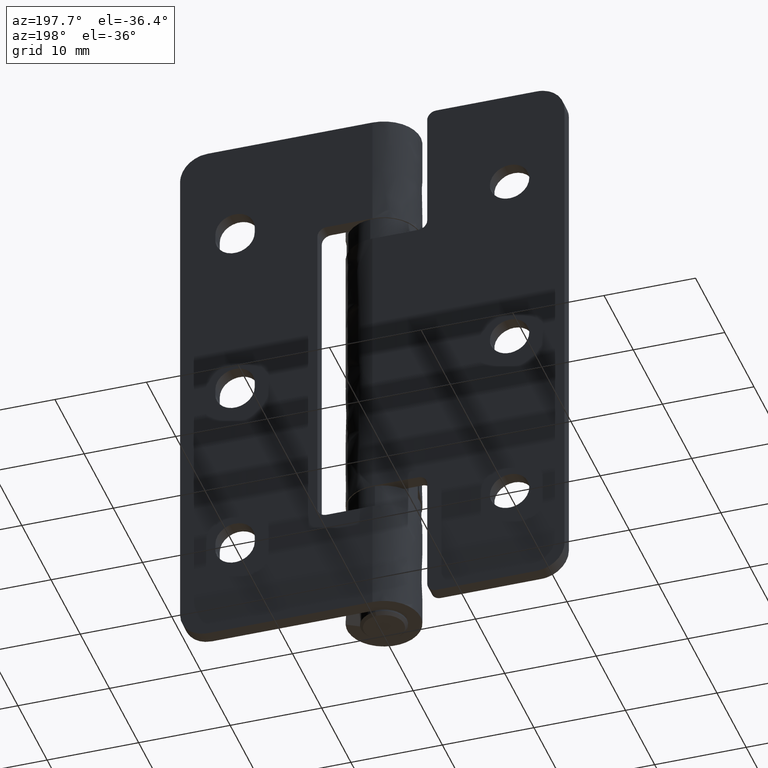
[diagram: clean part render]
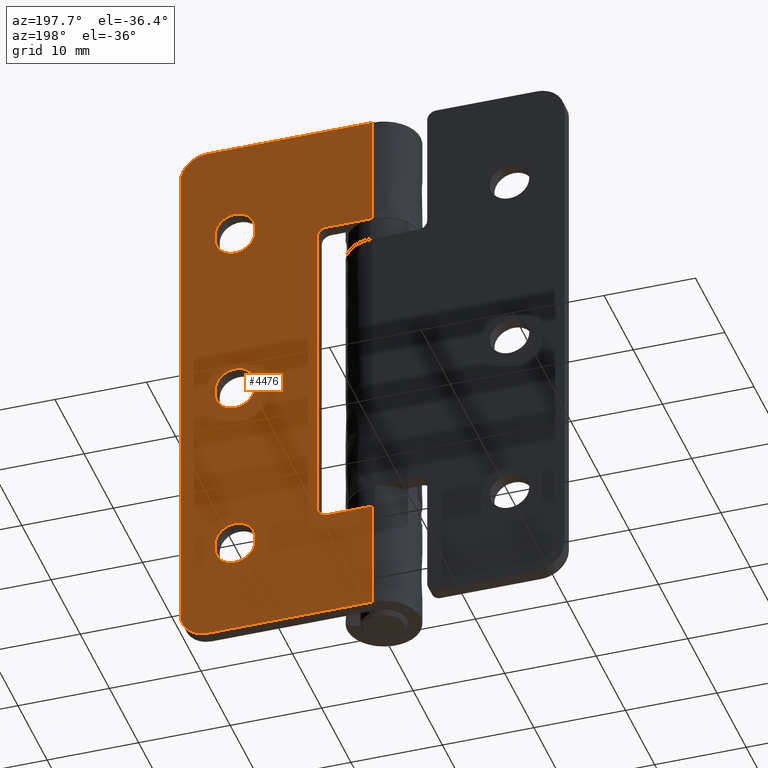
[diagram: same view with one face highlighted and labeled with its STEP entity id]
A machine part, auxiliary view. The second image highlights one B-rep face of the part: STEP entity #4476.
In plain terms, the highlighted face is a freeform B-spline surface patch.
Its self-contained STEP definition (entity closure, byte-faithful):
#2877=CARTESIAN_POINT('',(21.000000000000249,4.000000000000740,59.0));
#2878=VERTEX_POINT('',#2877);
#2879=CARTESIAN_POINT('',(21.000000000000249,4.000000000000740,3.0));
#2880=VERTEX_POINT('',#2879);
#2881=CARTESIAN_POINT('',(21.000000000000249,4.000000000000740,59.0));
#2882=CARTESIAN_POINT('',(21.000000000000249,4.000000000000740,3.0));
#2883=QUASI_UNIFORM_CURVE('',1,(#2881,#2882),.UNSPECIFIED.,.F.,.U.);
#2884=EDGE_CURVE('',#2878,#2880,#2883,.T.);
#3145=CARTESIAN_POINT('',(18.0,4.000000000000686,0.0));
#3146=VERTEX_POINT('',#3145);
#3152=CARTESIAN_POINT('',(21.000000000000249,4.000000000000740,3.0));
#3153=CARTESIAN_POINT('',(21.000000000000004,4.000000000000685,0.0));
#3154=CARTESIAN_POINT('',(18.0,4.000000000000686,0.0));
#3162=(BOUNDED_CURVE()B_SPLINE_CURVE(2,(#3152,#3153,#3154),.UNSPECIFIED.,.F.,.U.)CURVE()GEOMETRIC_REPRESENTATION_ITEM()QUASI_UNIFORM_CURVE()RATIONAL_B_SPLINE_CURVE((1.0,0.707106781186548,1.0))REPRESENTATION_ITEM(''));
#3163=EDGE_CURVE('',#2880,#3146,#3162,.T.);
#3199=CARTESIAN_POINT('',(18.0,4.000000000000686,62.0));
#3200=VERTEX_POINT('',#3199);
#3201=CARTESIAN_POINT('',(18.0,4.000000000000686,62.0));
#3202=CARTESIAN_POINT('',(21.000000000000004,4.000000000000685,62.000000000000007));
#3203=CARTESIAN_POINT('',(21.0,4.000000000000686,59.0));
#3211=(BOUNDED_CURVE()B_SPLINE_CURVE(2,(#3201,#3202,#3203),.UNSPECIFIED.,.F.,.U.)CURVE()GEOMETRIC_REPRESENTATION_ITEM()QUASI_UNIFORM_CURVE()RATIONAL_B_SPLINE_CURVE((1.0,0.707106781186548,1.0))REPRESENTATION_ITEM(''));
#3212=EDGE_CURVE('',#3200,#2878,#3211,.T.);
#3253=CARTESIAN_POINT('',(5.000000000000230,4.0,49.600000000000001));
#3254=VERTEX_POINT('',#3253);
#3260=CARTESIAN_POINT('',(6.000000000000230,4.0,48.599999999999987));
#3261=VERTEX_POINT('',#3260);
#3262=CARTESIAN_POINT('',(6.000000000000230,4.0,48.599999999999987));
#3263=CARTESIAN_POINT('',(6.000000000000230,4.000000000000451,49.600000000000001));
#3264=CARTESIAN_POINT('',(5.000000000000230,4.000000000000450,49.600000000000001));
#3272=(BOUNDED_CURVE()B_SPLINE_CURVE(2,(#3262,#3263,#3264),.UNSPECIFIED.,.F.,.U.)CURVE()GEOMETRIC_REPRESENTATION_ITEM()QUASI_UNIFORM_CURVE()RATIONAL_B_SPLINE_CURVE((1.0,0.707106781186548,1.0))REPRESENTATION_ITEM(''));
#3273=EDGE_CURVE('',#3261,#3254,#3272,.T.);
#3314=CARTESIAN_POINT('',(6.0,4.0,13.400000000000000));
#3315=VERTEX_POINT('',#3314);
#3321=CARTESIAN_POINT('',(5.0,4.0,12.400000000000000));
#3322=VERTEX_POINT('',#3321);
#3323=CARTESIAN_POINT('',(5.0,4.0,12.400000000000000));
#3324=CARTESIAN_POINT('',(6.0,4.000000000000451,12.400000000000002));
#3325=CARTESIAN_POINT('',(6.0,4.000000000000450,13.400000000000000));
#3333=(BOUNDED_CURVE()B_SPLINE_CURVE(2,(#3323,#3324,#3325),.UNSPECIFIED.,.F.,.U.)CURVE()GEOMETRIC_REPRESENTATION_ITEM()QUASI_UNIFORM_CURVE()RATIONAL_B_SPLINE_CURVE((1.0,0.707106781186548,1.0))REPRESENTATION_ITEM(''));
#3334=EDGE_CURVE('',#3322,#3315,#3333,.T.);
#3349=CARTESIAN_POINT('',(1.136244E-013,4.0,12.400000000000000));
#3350=VERTEX_POINT('',#3349);
#3421=CARTESIAN_POINT('',(5.0,4.0,12.400000000000000));
#3422=CARTESIAN_POINT('',(1.136244E-013,4.0,12.400000000000000));
#3423=QUASI_UNIFORM_CURVE('',1,(#3421,#3422),.UNSPECIFIED.,.F.,.U.);
#3424=EDGE_CURVE('',#3322,#3350,#3423,.T.);
#3434=CARTESIAN_POINT('',(6.000000000000230,4.0,48.599999999999987));
#3435=CARTESIAN_POINT('',(6.0,4.0,13.400000000000000));
#3436=QUASI_UNIFORM_CURVE('',1,(#3434,#3435),.UNSPECIFIED.,.F.,.U.);
#3437=EDGE_CURVE('',#3261,#3315,#3436,.T.);
#3486=CARTESIAN_POINT('',(1.136244E-013,4.0,49.600000000000001));
#3487=VERTEX_POINT('',#3486);
#3521=CARTESIAN_POINT('',(1.136244E-013,4.0,49.600000000000001));
#3522=CARTESIAN_POINT('',(5.000000000000230,4.0,49.600000000000001));
#3523=QUASI_UNIFORM_CURVE('',1,(#3521,#3522),.UNSPECIFIED.,.F.,.U.);
#3524=EDGE_CURVE('',#3487,#3254,#3523,.T.);
#3553=CARTESIAN_POINT('',(12.850000000000220,4.000000000000740,50.649999999999999));
#3554=VERTEX_POINT('',#3553);
#3555=CARTESIAN_POINT('',(17.150000000000251,4.000000000000711,50.649999999999999));
#3556=VERTEX_POINT('',#3555);
#3557=CARTESIAN_POINT('',(12.850000000000220,4.000000000000740,50.649999999999999));
#3558=CARTESIAN_POINT('',(12.849949483375140,4.000000000000746,50.456515946203012));
#3559=CARTESIAN_POINT('',(12.904937891584680,4.000000000000738,50.051968708920647));
#3560=CARTESIAN_POINT('',(13.142689635596261,4.000000000000727,49.515523118448179));
#3561=CARTESIAN_POINT('',(13.491297459781419,4.000000000000750,49.090856070506881));
#3562=CARTESIAN_POINT('',(13.864538752415010,4.000000000000735,48.806894730438337));
#3563=CARTESIAN_POINT('',(14.238714454196611,4.000000000000743,48.627129911147932));
#3564=CARTESIAN_POINT('',(14.621535094519800,4.000000000000737,48.521182976742047));
#3565=CARTESIAN_POINT('',(15.000117129785490,4.000000000000719,48.488590470114197));
#3566=CARTESIAN_POINT('',(15.439399360565551,4.000000000000752,48.529085340179257));
#3567=CARTESIAN_POINT('',(15.871388360378591,4.000000000000737,48.663020993919432));
#3568=CARTESIAN_POINT('',(16.259617493765731,4.000000000000746,48.892539473436962));
#3569=CARTESIAN_POINT('',(16.585254305548780,4.000000000000698,49.176921221867147));
#3570=CARTESIAN_POINT('',(16.839279092772681,4.000000000000783,49.506571316471778));
#3571=CARTESIAN_POINT('',(17.080297092800780,4.000000000000840,50.008118375309579));
#3572=CARTESIAN_POINT('',(17.150202102459051,4.000000000000608,50.394919561375183));
#3573=CARTESIAN_POINT('',(17.150000000000251,4.000000000000711,50.649999999999999));
#3574=B_SPLINE_CURVE_WITH_KNOTS('',3,(#3557,#3558,#3559,#3560,#3561,#3562,#3563,#3564,#3565,#3566,#3567,#3568,#3569,#3570,#3571,#3572,#3573),.UNSPECIFIED.,.F.,.U.,(4,1,1,1,1,1,1,1,1,1,1,1,1,1,4),(0.000000256191891,0.580449485174453,1.213690184713316,1.741388629170988,2.216328478641885,2.612095563858018,2.981479940108516,3.403577252444793,3.746583584079580,4.300687839606021,4.749227474744182,5.092236488777210,5.593561053522185,5.989330165365465,6.754466586436591),.UNSPECIFIED.);
#3575=EDGE_CURVE('',#3554,#3556,#3574,.T.);
#3618=CARTESIAN_POINT('',(17.150000000000251,4.000000000000740,51.350000000000001));
#3619=VERTEX_POINT('',#3618);
#3620=CARTESIAN_POINT('',(17.150000000000251,4.000000000000740,51.350000000000001));
#3621=CARTESIAN_POINT('',(17.150000000000251,4.000000000000711,50.649999999999999));
#3622=QUASI_UNIFORM_CURVE('',1,(#3620,#3621),.UNSPECIFIED.,.F.,.U.);
#3623=EDGE_CURVE('',#3619,#3556,#3622,.T.);
#3659=CARTESIAN_POINT('',(12.850000000000220,4.000000000000740,51.350000000000001));
#3660=VERTEX_POINT('',#3659);
#3661=CARTESIAN_POINT('',(17.150000000000251,4.000000000000740,51.350000000000001));
#3662=CARTESIAN_POINT('',(17.150230990420638,4.000000000000740,51.613876000975907));
#3663=CARTESIAN_POINT('',(17.074562391639930,4.000000000000751,52.018252340917513));
#3664=CARTESIAN_POINT('',(16.832113035476951,4.000000000000718,52.499755823520488));
#3665=CARTESIAN_POINT('',(16.567962388953919,4.000000000000776,52.842580583312063));
#3666=CARTESIAN_POINT('',(16.273150377586241,4.000000000000730,53.096882459916444));
#3667=CARTESIAN_POINT('',(15.931652411598661,4.000000000000739,53.298716819336448));
#3668=CARTESIAN_POINT('',(15.610092890999750,4.000000000000747,53.422755303990627));
#3669=CARTESIAN_POINT('',(15.238177294500399,4.000000000000729,53.496716433856101));
#3670=CARTESIAN_POINT('',(14.814441364340450,4.000000000000778,53.509778419315488));
#3671=CARTESIAN_POINT('',(14.352925358346740,4.000000000000664,53.420915686048822));
#3672=CARTESIAN_POINT('',(13.957902254117331,4.000000000000870,53.242859344131531));
#3673=CARTESIAN_POINT('',(13.636743231458970,4.000000000000511,53.025394111235791));
#3674=CARTESIAN_POINT('',(13.310232061888550,4.000000000000764,52.714673518604087));
#3675=CARTESIAN_POINT('',(13.039135038742630,4.000000000001059,52.286527082804469));
#3676=CARTESIAN_POINT('',(12.881312715521490,4.000000000000048,51.798515045644493));
#3677=CARTESIAN_POINT('',(12.849981353153920,4.000000000001498,51.499502506799942));
#3678=CARTESIAN_POINT('',(12.850000000000220,4.000000000000740,51.350000000000001));
#3679=B_SPLINE_CURVE_WITH_KNOTS('',3,(#3661,#3662,#3663,#3664,#3665,#3666,#3667,#3668,#3669,#3670,#3671,#3672,#3673,#3674,#3675,#3676,#3677,#3678),.UNSPECIFIED.,.F.,.U.,(4,1,1,1,1,1,1,1,1,1,1,1,1,1,1,4),(0.000000256083267,0.791510748578039,1.213690184623171,1.609463321785003,2.084395032135302,2.374630800097287,2.796792358293506,3.113407199308474,3.509150175144144,4.063218257777126,4.511755460868990,4.801996873459974,5.224160100035586,5.857392998493596,6.305958475247770,6.754466586436789),.UNSPECIFIED.);
#3680=EDGE_CURVE('',#3619,#3660,#3679,.T.);
#3719=CARTESIAN_POINT('',(12.850000000000220,4.000000000000740,50.649999999999999));
#3720=CARTESIAN_POINT('',(12.850000000000220,4.000000000000740,51.350000000000001));
#3721=QUASI_UNIFORM_CURVE('',1,(#3719,#3720),.UNSPECIFIED.,.F.,.U.);
#3722=EDGE_CURVE('',#3554,#3660,#3721,.T.);
#3752=CARTESIAN_POINT('',(12.850000000000120,4.000000000000740,30.649999999999999));
#3753=VERTEX_POINT('',#3752);
#3754=CARTESIAN_POINT('',(17.149999999999999,4.000000000000711,30.649999999999999));
#3755=VERTEX_POINT('',#3754);
#3756=CARTESIAN_POINT('',(12.850000000000120,4.000000000000740,30.649999999999999));
#3757=CARTESIAN_POINT('',(12.849976557866750,4.000000000000738,30.500498464274710));
#3758=CARTESIAN_POINT('',(12.880395874254431,4.000000000000739,30.210281117305229));
#3759=CARTESIAN_POINT('',(13.013817892535879,4.000000000000739,29.789044566968190));
#3760=CARTESIAN_POINT('',(13.246621759151671,4.000000000000766,29.372103726702761));
#3761=CARTESIAN_POINT('',(13.618320287914340,4.000000000000691,28.966935612201109));
#3762=CARTESIAN_POINT('',(14.080040902609801,4.000000000000793,28.682431490230481));
#3763=CARTESIAN_POINT('',(14.526605665737719,4.000000000000720,28.541083982515499));
#3764=CARTESIAN_POINT('',(14.981567709049839,4.000000000000680,28.482067738204950));
#3765=CARTESIAN_POINT('',(15.494576466533390,4.000000000000829,28.529383483195978));
#3766=CARTESIAN_POINT('',(15.991378585372860,4.000000000000560,28.721065880527750));
#3767=CARTESIAN_POINT('',(16.364348719431291,4.000000000001055,28.973667660000860));
#3768=CARTESIAN_POINT('',(16.636028699779470,4.000000000000554,29.238757100087039));
#3769=CARTESIAN_POINT('',(16.884273578706871,4.000000000000848,29.582151186227350));
#3770=CARTESIAN_POINT('',(17.092554602756110,4.000000000000683,30.052012915378889));
#3771=CARTESIAN_POINT('',(17.150088777582351,4.000000000000739,30.438923132594962));
#3772=CARTESIAN_POINT('',(17.149999999999999,4.000000000000711,30.649999999999999));
#3773=B_SPLINE_CURVE_WITH_KNOTS('',3,(#3756,#3757,#3758,#3759,#3760,#3761,#3762,#3763,#3764,#3765,#3766,#3767,#3768,#3769,#3770,#3771,#3772),.UNSPECIFIED.,.F.,.U.,(4,1,1,1,1,1,1,1,1,1,1,1,1,1,4),(0.000000256190854,0.448502355695819,0.870687178632934,1.319224501076875,1.873317267186438,2.506566842033939,2.928725169748888,3.271737276598653,3.878517450723111,4.458986196882281,4.854767075717463,5.224160100058536,5.593561053520793,6.121264929809441,6.754466586436537),.UNSPECIFIED.);
#3774=EDGE_CURVE('',#3753,#3755,#3773,.T.);
#3818=CARTESIAN_POINT('',(17.149999999999999,4.000000000000740,31.350000000000001));
#3819=VERTEX_POINT('',#3818);
#3820=CARTESIAN_POINT('',(17.149999999999999,4.000000000000740,31.350000000000001));
#3821=CARTESIAN_POINT('',(17.149999999999999,4.000000000000711,30.649999999999999));
#3822=QUASI_UNIFORM_CURVE('',1,(#3820,#3821),.UNSPECIFIED.,.F.,.U.);
#3823=EDGE_CURVE('',#3819,#3755,#3822,.T.);
#3859=CARTESIAN_POINT('',(12.850000000000120,4.000000000000740,31.350000000000001));
#3860=VERTEX_POINT('',#3859);
#3861=CARTESIAN_POINT('',(17.149999999999999,4.000000000000740,31.350000000000001));
#3862=CARTESIAN_POINT('',(17.150068675766491,4.000000000000732,31.543491936579539));
#3863=CARTESIAN_POINT('',(17.110539909640220,4.000000000000743,31.833674535843659));
#3864=CARTESIAN_POINT('',(16.964611480277689,4.000000000000742,32.249566153686608));
#3865=CARTESIAN_POINT('',(16.783538954920559,4.000000000000736,32.573832283974291));
#3866=CARTESIAN_POINT('',(16.522094804051989,4.000000000000743,32.884532567799177));
#3867=CARTESIAN_POINT('',(16.189250779385048,4.000000000000732,33.161150770744271));
#3868=CARTESIAN_POINT('',(15.725202888016010,4.000000000000727,33.402007069398572));
#3869=CARTESIAN_POINT('',(15.177253625026900,4.000000000000743,33.517973847327987));
#3870=CARTESIAN_POINT('',(14.611408075760581,4.000000000000748,33.486669887590388));
#3871=CARTESIAN_POINT('',(14.128607510691181,4.000000000000737,33.336980296285667));
#3872=CARTESIAN_POINT('',(13.732768893821421,4.000000000000741,33.102961437353663));
#3873=CARTESIAN_POINT('',(13.408723859698430,4.000000000000734,32.816438788621880));
#3874=CARTESIAN_POINT('',(13.156901771271221,4.000000000000744,32.485462754370197));
#3875=CARTESIAN_POINT('',(12.919699196175999,4.000000000000770,31.991884485493600));
#3876=CARTESIAN_POINT('',(12.849799001226341,4.000000000000675,31.605079550094299));
#3877=CARTESIAN_POINT('',(12.850000000000120,4.000000000000740,31.350000000000001));
#3878=B_SPLINE_CURVE_WITH_KNOTS('',3,(#3861,#3862,#3863,#3864,#3865,#3866,#3867,#3868,#3869,#3870,#3871,#3872,#3873,#3874,#3875,#3876,#3877),.UNSPECIFIED.,.F.,.U.,(4,1,1,1,1,1,1,1,1,1,1,1,1,1,4),(0.000000256140868,0.580449485126693,0.870687178589490,1.319224501036781,1.688618387015964,2.084395032174720,2.612095563823314,3.245326837706314,3.746583584053985,4.300687839584193,4.749227474725407,5.118621269684548,5.593561053510771,5.989330165358206,6.754466586436606),.UNSPECIFIED.);
#3879=EDGE_CURVE('',#3819,#3860,#3878,.T.);
#3917=CARTESIAN_POINT('',(12.850000000000120,4.000000000000740,30.649999999999999));
#3918=CARTESIAN_POINT('',(12.850000000000120,4.000000000000740,31.350000000000001));
#3919=QUASI_UNIFORM_CURVE('',1,(#3917,#3918),.UNSPECIFIED.,.F.,.U.);
#3920=EDGE_CURVE('',#3753,#3860,#3919,.T.);
#3950=CARTESIAN_POINT('',(12.850000000000120,4.000000000000740,10.649999999999860));
#3951=VERTEX_POINT('',#3950);
#3952=CARTESIAN_POINT('',(17.149999999999999,4.000000000000711,10.649999999999860));
#3953=VERTEX_POINT('',#3952);
#3954=CARTESIAN_POINT('',(12.850000000000120,4.000000000000740,10.649999999999860));
#3955=CARTESIAN_POINT('',(12.849978130583100,4.000000000000745,10.500498704262521));
#3956=CARTESIAN_POINT('',(12.880393765606451,4.000000000000738,10.210280745157460));
#3957=CARTESIAN_POINT('',(13.013820928033240,4.000000000000744,9.789046521915006));
#3958=CARTESIAN_POINT('',(13.255228258379310,4.000000000000734,9.356645544302252));
#3959=CARTESIAN_POINT('',(13.602075855093361,4.000000000000756,8.987799396017829));
#3960=CARTESIAN_POINT('',(13.989116200763201,4.000000000000699,8.739477652262467));
#3961=CARTESIAN_POINT('',(14.355750002604291,4.000000000000756,8.587614507424803));
#3962=CARTESIAN_POINT('',(14.804109176746559,4.000000000000733,8.486861905664267));
#3963=CARTESIAN_POINT('',(15.301786556233790,4.000000000000760,8.499057808778474));
#3964=CARTESIAN_POINT('',(15.778747148163131,4.000000000000707,8.631134149247448));
#3965=CARTESIAN_POINT('',(16.133965912311389,4.000000000000773,8.809936574108127));
#3966=CARTESIAN_POINT('',(16.479653648978879,4.000000000000766,9.069585161648343));
#3967=CARTESIAN_POINT('',(16.767278809433900,4.000000000000729,9.394857916376575));
#3968=CARTESIAN_POINT('',(16.988848912499151,4.000000000000734,9.797475087370909));
#3969=CARTESIAN_POINT('',(17.119602679478930,4.000000000000793,10.210287197708141));
#3970=CARTESIAN_POINT('',(17.150024083064160,4.000000000000570,10.500496082060440));
#3971=CARTESIAN_POINT('',(17.149999999999999,4.000000000000711,10.649999999999860));
#3972=B_SPLINE_CURVE_WITH_KNOTS('',3,(#3954,#3955,#3956,#3957,#3958,#3959,#3960,#3961,#3962,#3963,#3964,#3965,#3966,#3967,#3968,#3969,#3970,#3971),.UNSPECIFIED.,.F.,.U.,(4,1,1,1,1,1,1,1,1,1,1,1,1,1,1,4),(0.000000256190699,0.448502355696109,0.870687178633530,1.319224501078064,1.926087888362266,2.374630800168545,2.691265122620772,3.113407199367097,3.746583584077335,4.168746333595028,4.590926641801761,4.933927274643340,5.461629039764433,5.883799795478844,6.305958475254516,6.754466586436541),.UNSPECIFIED.);
#3973=EDGE_CURVE('',#3951,#3953,#3972,.T.);
#4018=CARTESIAN_POINT('',(17.149999999999999,4.000000000000740,11.350000000000140));
#4019=VERTEX_POINT('',#4018);
#4020=CARTESIAN_POINT('',(17.149999999999999,4.000000000000740,11.350000000000140));
#4021=CARTESIAN_POINT('',(17.149999999999999,4.000000000000711,10.649999999999860));
#4022=QUASI_UNIFORM_CURVE('',1,(#4020,#4021),.UNSPECIFIED.,.F.,.U.);
#4023=EDGE_CURVE('',#4019,#3953,#4022,.T.);
#4059=CARTESIAN_POINT('',(12.850000000000120,4.000000000000740,11.350000000000000));
#4060=VERTEX_POINT('',#4059);
#4061=CARTESIAN_POINT('',(17.149999999999999,4.000000000000740,11.350000000000140));
#4062=CARTESIAN_POINT('',(17.150022654784269,4.000000000000737,11.499501385508051));
#4063=CARTESIAN_POINT('',(17.119609048021399,4.000000000000745,11.789720877170030));
#4064=CARTESIAN_POINT('',(16.996843919446871,4.000000000000745,12.177253053687890));
#4065=CARTESIAN_POINT('',(16.815942126171809,4.000000000000735,12.520749269546389));
#4066=CARTESIAN_POINT('',(16.600296887334672,4.000000000000762,12.800589934479980));
#4067=CARTESIAN_POINT('',(16.316009177955198,4.000000000000727,13.064689942004270));
#4068=CARTESIAN_POINT('',(15.981132182059740,4.000000000000746,13.279644787414711));
#4069=CARTESIAN_POINT('',(15.568869834136819,4.000000000000735,13.438666608429170));
#4070=CARTESIAN_POINT('',(15.115354706739231,4.000000000000779,13.514508262628780));
#4071=CARTESIAN_POINT('',(14.655625057734239,4.000000000000724,13.489097301129441));
#4072=CARTESIAN_POINT('',(14.263851998318740,4.000000000000751,13.380651791098160));
#4073=CARTESIAN_POINT('',(13.920199131841230,4.000000000000749,13.220696632617541));
#4074=CARTESIAN_POINT('',(13.628708283493070,4.000000000000748,13.020715270956011));
#4075=CARTESIAN_POINT('',(13.346243871616419,4.000000000000732,12.741687687156579));
#4076=CARTESIAN_POINT('',(13.096855966052271,4.000000000000807,12.387666569145029));
#4077=CARTESIAN_POINT('',(12.900208945847620,4.000000000000581,11.912825442371830));
#4078=CARTESIAN_POINT('',(12.849930571427720,4.000000000000865,11.543486258541110));
#4079=CARTESIAN_POINT('',(12.850000000000120,4.000000000000740,11.350000000000000));
#4080=B_SPLINE_CURVE_WITH_KNOTS('',3,(#4061,#4062,#4063,#4064,#4065,#4066,#4067,#4068,#4069,#4070,#4071,#4072,#4073,#4074,#4075,#4076,#4077,#4078,#4079),.UNSPECIFIED.,.F.,.U.,(4,1,1,1,1,1,1,1,1,1,1,1,1,1,1,1,4),(0.000000256184443,0.448502355689469,0.870687178626476,1.213690184704608,1.609463321860733,1.926087888354909,2.374630800161906,2.796792358351804,3.245326837728524,3.746583584073190,4.168746333591519,4.458986196879334,4.881156938075682,5.224160100056658,5.646330985942787,6.174026543227247,6.754466586436303),.UNSPECIFIED.);
#4081=EDGE_CURVE('',#4019,#4060,#4080,.T.);
#4120=CARTESIAN_POINT('',(12.850000000000120,4.000000000000740,10.649999999999860));
#4121=CARTESIAN_POINT('',(12.850000000000120,4.000000000000740,11.350000000000000));
#4122=QUASI_UNIFORM_CURVE('',1,(#4120,#4121),.UNSPECIFIED.,.F.,.U.);
#4123=EDGE_CURVE('',#3951,#4060,#4122,.T.);
#4172=CARTESIAN_POINT('',(4.936607E-013,4.000000000000370,0.0));
#4173=VERTEX_POINT('',#4172);
#4206=CARTESIAN_POINT('',(18.0,4.000000000000686,0.0));
#4207=CARTESIAN_POINT('',(4.936607E-013,4.000000000000370,0.0));
#4208=QUASI_UNIFORM_CURVE('',1,(#4206,#4207),.UNSPECIFIED.,.F.,.U.);
#4209=EDGE_CURVE('',#3146,#4173,#4208,.T.);
#4225=CARTESIAN_POINT('',(4.936607E-013,4.000000000000370,62.0));
#4226=VERTEX_POINT('',#4225);
#4295=CARTESIAN_POINT('',(18.0,4.000000000000686,62.0));
#4296=CARTESIAN_POINT('',(4.936607E-013,4.000000000000370,62.0));
#4297=QUASI_UNIFORM_CURVE('',1,(#4295,#4296),.UNSPECIFIED.,.F.,.U.);
#4298=EDGE_CURVE('',#3200,#4226,#4297,.T.);
#4425=CARTESIAN_POINT('',(1.136244E-013,4.0,12.400000000000000));
#4426=CARTESIAN_POINT('',(4.936607E-013,4.000000000000370,0.0));
#4427=QUASI_UNIFORM_CURVE('',1,(#4425,#4426),.UNSPECIFIED.,.F.,.U.);
#4428=EDGE_CURVE('',#3350,#4173,#4427,.T.);
#4435=CARTESIAN_POINT('',(-1.048949959297818,4.000000000000740,-3.096899879831973));
#4436=CARTESIAN_POINT('',(22.048950522562080,4.000000000000740,-3.096899879831973));
#4437=CARTESIAN_POINT('',(-1.048949959297818,4.000000000000740,65.096901542801575));
#4438=CARTESIAN_POINT('',(22.048950522562080,4.000000000000740,65.096901542801575));
#4439=B_SPLINE_SURFACE_WITH_KNOTS('',1,1,((#4435,#4437),(#4436,#4438)),.UNSPECIFIED.,.F.,.F.,.U.,(2,2),(2,2),(0.0,23.097900481859899),(0.0,68.193801422633555),.UNSPECIFIED.);
#4440=ORIENTED_EDGE('',*,*,#4298,.F.);
#4441=ORIENTED_EDGE('',*,*,#3212,.T.);
#4442=ORIENTED_EDGE('',*,*,#2884,.T.);
#4443=ORIENTED_EDGE('',*,*,#3163,.T.);
#4444=ORIENTED_EDGE('',*,*,#4209,.T.);
#4445=ORIENTED_EDGE('',*,*,#4428,.F.);
#4446=ORIENTED_EDGE('',*,*,#3424,.F.);
#4447=ORIENTED_EDGE('',*,*,#3334,.T.);
#4448=ORIENTED_EDGE('',*,*,#3437,.F.);
#4449=ORIENTED_EDGE('',*,*,#3273,.T.);
#4450=ORIENTED_EDGE('',*,*,#3524,.F.);
#4451=CARTESIAN_POINT('',(4.936607E-013,4.000000000000370,62.0));
#4452=CARTESIAN_POINT('',(1.136244E-013,4.0,49.600000000000001));
#4453=QUASI_UNIFORM_CURVE('',1,(#4451,#4452),.UNSPECIFIED.,.F.,.U.);
#4454=EDGE_CURVE('',#4226,#3487,#4453,.T.);
#4455=ORIENTED_EDGE('',*,*,#4454,.F.);
#4456=EDGE_LOOP('',(#4440,#4441,#4442,#4443,#4444,#4445,#4446,#4447,#4448,#4449,#4450,#4455));
#4457=FACE_OUTER_BOUND('',#4456,.T.);
#4458=ORIENTED_EDGE('',*,*,#3879,.T.);
#4459=ORIENTED_EDGE('',*,*,#3920,.F.);
#4460=ORIENTED_EDGE('',*,*,#3774,.T.);
#4461=ORIENTED_EDGE('',*,*,#3823,.F.);
#4462=EDGE_LOOP('',(#4458,#4459,#4460,#4461));
#4463=FACE_BOUND('',#4462,.T.);
#4464=ORIENTED_EDGE('',*,*,#4081,.T.);
#4465=ORIENTED_EDGE('',*,*,#4123,.F.);
#4466=ORIENTED_EDGE('',*,*,#3973,.T.);
#4467=ORIENTED_EDGE('',*,*,#4023,.F.);
#4468=EDGE_LOOP('',(#4464,#4465,#4466,#4467));
#4469=FACE_BOUND('',#4468,.T.);
#4470=ORIENTED_EDGE('',*,*,#3680,.T.);
#4471=ORIENTED_EDGE('',*,*,#3722,.F.);
#4472=ORIENTED_EDGE('',*,*,#3575,.T.);
#4473=ORIENTED_EDGE('',*,*,#3623,.F.);
#4474=EDGE_LOOP('',(#4470,#4471,#4472,#4473));
#4475=FACE_BOUND('',#4474,.T.);
#4476=ADVANCED_FACE('',(#4457,#4463,#4469,#4475),#4439,.F.);